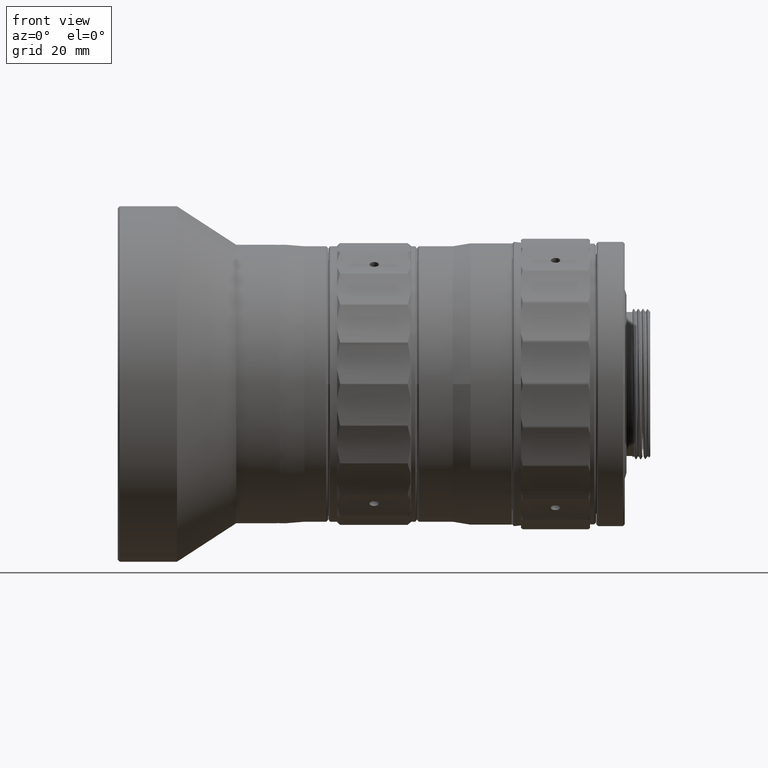
[diagram: clean part render]
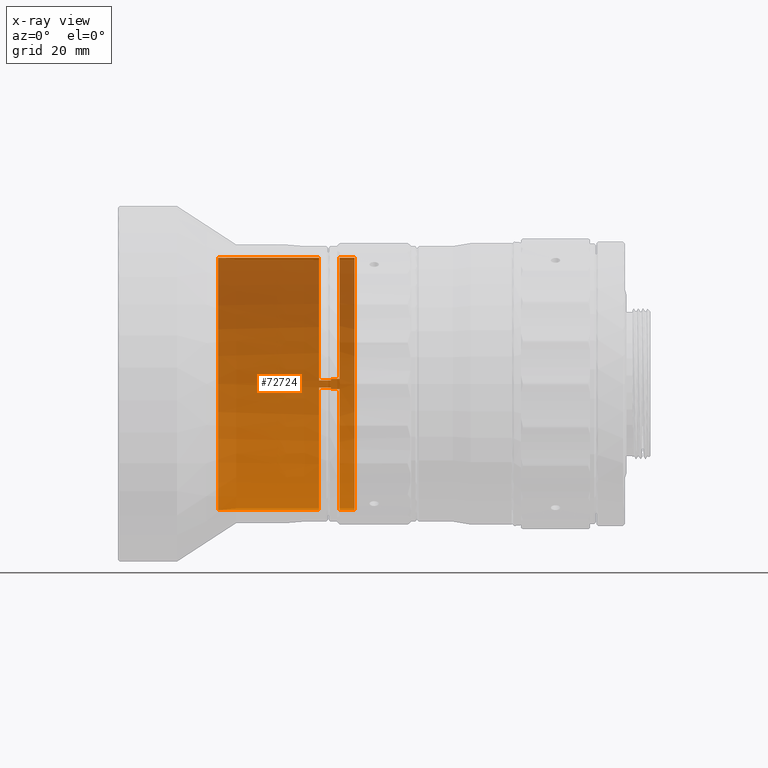
[diagram: x-ray — body ghosted, one internal face saturated and labeled with its STEP entity id]
A machine part, front view, then the same camera in x-ray: the body is ghosted and one INTERNAL B-rep face — a face not visible from any outside direction — is saturated and labeled: STEP entity #72724.
In plain terms, the highlighted cylindrical surface (partial cylindrical patch) has radius 21.3 mm, axis along (-1, -0, -0).
Its self-contained STEP definition (entity closure, byte-faithful):
#97 = AXIS2_PLACEMENT_3D ( 'NONE', #57621, #31485, #16649 ) ;
#361 = DIRECTION ( 'NONE',  ( 1.000000000000000000, -0.000000000000000000, 0.000000000000000000 ) ) ;
#796 = CARTESIAN_POINT ( 'NONE',  ( 28.51390000000000313, 21.28285527011171396, 0.8543962173195950305 ) ) ;
#2290 = VERTEX_POINT ( 'NONE', #73878 ) ;
#2403 = CIRCLE ( 'NONE', #56661, 21.29999815363118643 ) ;
#3439 = VERTEX_POINT ( 'NONE', #81314 ) ;
#3611 = ORIENTED_EDGE ( 'NONE', *, *, #46040, .F. ) ;
#3701 = VECTOR ( 'NONE', #82638, 1000.000000000000000 ) ;
#3788 = ORIENTED_EDGE ( 'NONE', *, *, #82797, .T. ) ;
#5589 = DIRECTION ( 'NONE',  ( -1.000000000000000000, 0.000000000000000000, -0.000000000000000000 ) ) ;
#5839 = ORIENTED_EDGE ( 'NONE', *, *, #84090, .T. ) ;
#6842 = VERTEX_POINT ( 'NONE', #79384 ) ;
#6993 = EDGE_CURVE ( 'NONE', #83916, #53559, #82373, .T. ) ;
#7494 = DIRECTION ( 'NONE',  ( -1.000000000000000000, -0.000000000000000000, -0.000000000000000000 ) ) ;
#8150 = LINE ( 'NONE', #15124, #14729 ) ;
#8206 = ORIENTED_EDGE ( 'NONE', *, *, #35708, .T. ) ;
#9231 = ORIENTED_EDGE ( 'NONE', *, *, #49502, .F. ) ;
#9756 = VECTOR ( 'NONE', #5589, 1000.000000000000000 ) ;
#10431 = DIRECTION ( 'NONE',  ( -1.000000000000000000, -0.000000000000000000, -0.000000000000000000 ) ) ;
#10786 = VERTEX_POINT ( 'NONE', #18046 ) ;
#11025 = CARTESIAN_POINT ( 'NONE',  ( 27.01390000000000668, 0.000000000000000000, 0.000000000000000000 ) ) ;
#11442 = EDGE_CURVE ( 'NONE', #10786, #57195, #12235, .T. ) ;
#12235 = CIRCLE ( 'NONE', #79078, 21.29999815363118643 ) ;
#12467 = FACE_OUTER_BOUND ( 'NONE', #57435, .T. ) ;
#12765 = DIRECTION ( 'NONE',  ( 0.000000000000000000, 0.000000000000000000, -1.000000000000000000 ) ) ;
#14729 = VECTOR ( 'NONE', #15549, 1000.000000000000000 ) ;
#14746 = ORIENTED_EDGE ( 'NONE', *, *, #78312, .T. ) ;
#14992 = AXIS2_PLACEMENT_3D ( 'NONE', #52155, #80025, #46470 ) ;
#15124 = CARTESIAN_POINT ( 'NONE',  ( 35.69390000000001351, 21.28285527011171396, -0.8543962173195950305 ) ) ;
#15549 = DIRECTION ( 'NONE',  ( 1.000000000000000000, 0.000000000000000000, 0.000000000000000000 ) ) ;
#16649 = DIRECTION ( 'NONE',  ( 0.000000000000000000, -1.776356839400250465E-15, -1.000000000000000000 ) ) ;
#18046 = CARTESIAN_POINT ( 'NONE',  ( 31.01390000000000313, 0.000000000000000000, 21.29999815363118643 ) ) ;
#19743 = LINE ( 'NONE', #80310, #65780 ) ;
#21383 = DIRECTION ( 'NONE',  ( -1.000000000000000000, -0.000000000000000000, -0.000000000000000000 ) ) ;
#23656 = DIRECTION ( 'NONE',  ( 0.000000000000000000, 0.000000000000000000, -1.000000000000000000 ) ) ;
#24013 = AXIS2_PLACEMENT_3D ( 'NONE', #61592, #81640, #41110 ) ;
#24517 = CIRCLE ( 'NONE', #64932, 21.29999815363118643 ) ;
#24524 = ORIENTED_EDGE ( 'NONE', *, *, #69105, .T. ) ;
#24570 = CARTESIAN_POINT ( 'NONE',  ( 28.51390000000000313, 2.608497456068896813E-15, -21.29999815363118643 ) ) ;
#24811 = DIRECTION ( 'NONE',  ( 0.000000000000000000, 0.000000000000000000, -1.000000000000000000 ) ) ;
#25334 = EDGE_CURVE ( 'NONE', #81644, #3439, #19743, .T. ) ;
#25490 = CARTESIAN_POINT ( 'NONE',  ( 28.51390000000000313, 0.000000000000000000, 21.29999815363118643 ) ) ;
#25848 = DIRECTION ( 'NONE',  ( -1.000000000000000000, -0.000000000000000000, -0.000000000000000000 ) ) ;
#26518 = LINE ( 'NONE', #54359, #40622 ) ;
#26935 = CARTESIAN_POINT ( 'NONE',  ( 27.01389999999999958, 21.28285527011171396, -0.8543962173195950305 ) ) ;
#27718 = VERTEX_POINT ( 'NONE', #81623 ) ;
#29448 = CARTESIAN_POINT ( 'NONE',  ( 69.69390000000002772, 2.608497456068896813E-15, -21.29999815363118643 ) ) ;
#29529 = LINE ( 'NONE', #58709, #64369 ) ;
#30773 = AXIS2_PLACEMENT_3D ( 'NONE', #72516, #25848, #12765 ) ;
#31450 = CARTESIAN_POINT ( 'NONE',  ( 25.01390000000000668, 0.000000000000000000, 21.29999815363118643 ) ) ;
#31485 = DIRECTION ( 'NONE',  ( -1.000000000000000000, -0.000000000000000000, -0.000000000000000000 ) ) ;
#32215 = DIRECTION ( 'NONE',  ( 1.000000000000000000, 0.000000000000000000, 0.000000000000000000 ) ) ;
#32550 = DIRECTION ( 'NONE',  ( -1.000000000000000000, -0.000000000000000000, -0.000000000000000000 ) ) ;
#33049 = LINE ( 'NONE', #66186, #9756 ) ;
#33789 = CIRCLE ( 'NONE', #24013, 21.29999815363118643 ) ;
#34740 = ORIENTED_EDGE ( 'NONE', *, *, #83683, .T. ) ;
#34913 = ORIENTED_EDGE ( 'NONE', *, *, #38471, .T. ) ;
#35708 = EDGE_CURVE ( 'NONE', #2290, #6842, #61296, .T. ) ;
#37060 = CIRCLE ( 'NONE', #85790, 21.29999815363118643 ) ;
#38471 = EDGE_CURVE ( 'NONE', #58220, #27718, #37060, .T. ) ;
#38711 = ORIENTED_EDGE ( 'NONE', *, *, #62826, .F. ) ;
#40622 = VECTOR ( 'NONE', #361, 1000.000000000000000 ) ;
#41110 = DIRECTION ( 'NONE',  ( 0.000000000000000000, 0.000000000000000000, -1.000000000000000000 ) ) ;
#44518 = CARTESIAN_POINT ( 'NONE',  ( 25.01390000000000668, 21.29208146058790518, 0.5806792749709970280 ) ) ;
#46040 = EDGE_CURVE ( 'NONE', #72552, #65088, #72484, .T. ) ;
#46470 = DIRECTION ( 'NONE',  ( 0.000000000000000000, 0.000000000000000000, 1.000000000000000000 ) ) ;
#46664 = EDGE_CURVE ( 'NONE', #75008, #83916, #60014, .T. ) ;
#48115 = CARTESIAN_POINT ( 'NONE',  ( 27.01390000000000313, 21.29208146058791939, 0.5806792749709894785 ) ) ;
#49502 = EDGE_CURVE ( 'NONE', #10786, #75008, #67598, .T. ) ;
#49553 = DIRECTION ( 'NONE',  ( 0.000000000000000000, 0.000000000000000000, -1.000000000000000000 ) ) ;
#49668 = CARTESIAN_POINT ( 'NONE',  ( 31.01390000000000313, 0.000000000000000000, 0.000000000000000000 ) ) ;
#52155 = CARTESIAN_POINT ( 'NONE',  ( 69.69390000000002772, 0.000000000000000000, 0.000000000000000000 ) ) ;
#53559 = VERTEX_POINT ( 'NONE', #67500 ) ;
#54359 = CARTESIAN_POINT ( 'NONE',  ( 26.01390000000000668, 21.29208146058791939, 0.5806792749709894785 ) ) ;
#54893 = CARTESIAN_POINT ( 'NONE',  ( 35.69390000000001351, 21.28285527011171396, 0.8543962173195950305 ) ) ;
#55025 = ORIENTED_EDGE ( 'NONE', *, *, #25334, .F. ) ;
#55986 = AXIS2_PLACEMENT_3D ( 'NONE', #84538, #32215, #24811 ) ;
#56082 = CARTESIAN_POINT ( 'NONE',  ( 25.01390000000000668, 0.000000000000000000, 0.000000000000000000 ) ) ;
#56165 = ORIENTED_EDGE ( 'NONE', *, *, #11442, .T. ) ;
#56599 = VERTEX_POINT ( 'NONE', #48115 ) ;
#56661 = AXIS2_PLACEMENT_3D ( 'NONE', #84244, #76401, #64630 ) ;
#57195 = VERTEX_POINT ( 'NONE', #76121 ) ;
#57435 = EDGE_LOOP ( 'NONE', ( #56165, #5839, #3611, #81307, #34913, #14746, #71193, #8206, #24524, #55025, #38711, #3788, #34740, #63377, #71043, #9231 ) ) ;
#57495 = DIRECTION ( 'NONE',  ( 0.000000000000000000, 0.000000000000000000, 1.000000000000000000 ) ) ;
#57621 = CARTESIAN_POINT ( 'NONE',  ( 28.51390000000000313, 0.000000000000000000, 0.000000000000000000 ) ) ;
#58220 = VERTEX_POINT ( 'NONE', #26935 ) ;
#58709 = CARTESIAN_POINT ( 'NONE',  ( 69.69390000000002772, 2.608497456068896813E-15, -21.29999815363118643 ) ) ;
#60014 = CIRCLE ( 'NONE', #30773, 21.29999815363118643 ) ;
#61062 = CARTESIAN_POINT ( 'NONE',  ( 69.69390000000002772, 0.000000000000000000, 21.29999815363118643 ) ) ;
#61296 = LINE ( 'NONE', #29448, #3701 ) ;
#61540 = CIRCLE ( 'NONE', #55986, 21.29999815363118643 ) ;
#61592 = CARTESIAN_POINT ( 'NONE',  ( 25.01390000000000668, 0.000000000000000000, 0.000000000000000000 ) ) ;
#62673 = EDGE_CURVE ( 'NONE', #58220, #72552, #8150, .T. ) ;
#62826 = EDGE_CURVE ( 'NONE', #81588, #81644, #24517, .T. ) ;
#62924 = DIRECTION ( 'NONE',  ( 1.000000000000000000, 0.000000000000000000, 0.000000000000000000 ) ) ;
#63377 = ORIENTED_EDGE ( 'NONE', *, *, #6993, .F. ) ;
#64369 = VECTOR ( 'NONE', #32550, 1000.000000000000000 ) ;
#64630 = DIRECTION ( 'NONE',  ( 0.000000000000000000, 0.000000000000000000, -1.000000000000000000 ) ) ;
#64932 = AXIS2_PLACEMENT_3D ( 'NONE', #56082, #69632, #49553 ) ;
#65088 = VERTEX_POINT ( 'NONE', #24570 ) ;
#65780 = VECTOR ( 'NONE', #7494, 1000.000000000000000 ) ;
#66186 = CARTESIAN_POINT ( 'NONE',  ( 26.01390000000000668, 21.29208146058791939, -0.5806792749709894785 ) ) ;
#67500 = CARTESIAN_POINT ( 'NONE',  ( 27.01389999999999958, 21.28285527011171396, 0.8543962173195950305 ) ) ;
#67598 = LINE ( 'NONE', #61062, #78257 ) ;
#69105 = EDGE_CURVE ( 'NONE', #6842, #3439, #2403, .T. ) ;
#69285 = VERTEX_POINT ( 'NONE', #71616 ) ;
#69632 = DIRECTION ( 'NONE',  ( 1.000000000000000000, 0.000000000000000000, 0.000000000000000000 ) ) ;
#71043 = ORIENTED_EDGE ( 'NONE', *, *, #46664, .F. ) ;
#71193 = ORIENTED_EDGE ( 'NONE', *, *, #84695, .F. ) ;
#71616 = CARTESIAN_POINT ( 'NONE',  ( 25.01390000000000668, 21.29208146058790518, -0.5806792749709970280 ) ) ;
#72484 = CIRCLE ( 'NONE', #97, 21.29999815363118643 ) ;
#72516 = CARTESIAN_POINT ( 'NONE',  ( 28.51390000000000313, 0.000000000000000000, 0.000000000000000000 ) ) ;
#72552 = VERTEX_POINT ( 'NONE', #77889 ) ;
#72724 = ADVANCED_FACE ( 'NONE', ( #12467 ), #73075, .T. ) ;
#73075 = CYLINDRICAL_SURFACE ( 'NONE', #14992, 21.29999815363118643 ) ;
#73878 = CARTESIAN_POINT ( 'NONE',  ( 25.01390000000000668, 2.608497456068896813E-15, -21.29999815363118643 ) ) ;
#75008 = VERTEX_POINT ( 'NONE', #25490 ) ;
#76121 = CARTESIAN_POINT ( 'NONE',  ( 31.01390000000000313, 2.608497456068896813E-15, -21.29999815363118643 ) ) ;
#76401 = DIRECTION ( 'NONE',  ( 1.000000000000000000, 0.000000000000000000, 0.000000000000000000 ) ) ;
#77889 = CARTESIAN_POINT ( 'NONE',  ( 28.51390000000000313, 21.28285527011171396, -0.8543962173195950305 ) ) ;
#78257 = VECTOR ( 'NONE', #21383, 1000.000000000000000 ) ;
#78312 = EDGE_CURVE ( 'NONE', #27718, #69285, #33049, .T. ) ;
#79078 = AXIS2_PLACEMENT_3D ( 'NONE', #49668, #10431, #57495 ) ;
#79384 = CARTESIAN_POINT ( 'NONE',  ( 8.000000000000000000, 2.608497456068896813E-15, -21.29999815363118643 ) ) ;
#80025 = DIRECTION ( 'NONE',  ( -1.000000000000000000, -0.000000000000000000, -0.000000000000000000 ) ) ;
#80310 = CARTESIAN_POINT ( 'NONE',  ( 69.69390000000002772, 0.000000000000000000, 21.29999815363118643 ) ) ;
#81307 = ORIENTED_EDGE ( 'NONE', *, *, #62673, .F. ) ;
#81314 = CARTESIAN_POINT ( 'NONE',  ( 8.000000000000000000, 0.000000000000000000, 21.29999815363118643 ) ) ;
#81511 = DIRECTION ( 'NONE',  ( -1.000000000000000000, -0.000000000000000000, -0.000000000000000000 ) ) ;
#81588 = VERTEX_POINT ( 'NONE', #44518 ) ;
#81623 = CARTESIAN_POINT ( 'NONE',  ( 27.01390000000000313, 21.29208146058791939, -0.5806792749709894785 ) ) ;
#81640 = DIRECTION ( 'NONE',  ( 1.000000000000000000, 0.000000000000000000, 0.000000000000000000 ) ) ;
#81644 = VERTEX_POINT ( 'NONE', #31450 ) ;
#82373 = LINE ( 'NONE', #54893, #84372 ) ;
#82638 = DIRECTION ( 'NONE',  ( -1.000000000000000000, -0.000000000000000000, -0.000000000000000000 ) ) ;
#82797 = EDGE_CURVE ( 'NONE', #81588, #56599, #26518, .T. ) ;
#83683 = EDGE_CURVE ( 'NONE', #56599, #53559, #61540, .T. ) ;
#83916 = VERTEX_POINT ( 'NONE', #796 ) ;
#84090 = EDGE_CURVE ( 'NONE', #57195, #65088, #29529, .T. ) ;
#84244 = CARTESIAN_POINT ( 'NONE',  ( 8.000000000000000000, 0.000000000000000000, 0.000000000000000000 ) ) ;
#84372 = VECTOR ( 'NONE', #81511, 1000.000000000000000 ) ;
#84538 = CARTESIAN_POINT ( 'NONE',  ( 27.01390000000000668, 0.000000000000000000, 0.000000000000000000 ) ) ;
#84695 = EDGE_CURVE ( 'NONE', #2290, #69285, #33789, .T. ) ;
#85790 = AXIS2_PLACEMENT_3D ( 'NONE', #11025, #62924, #23656 ) ;